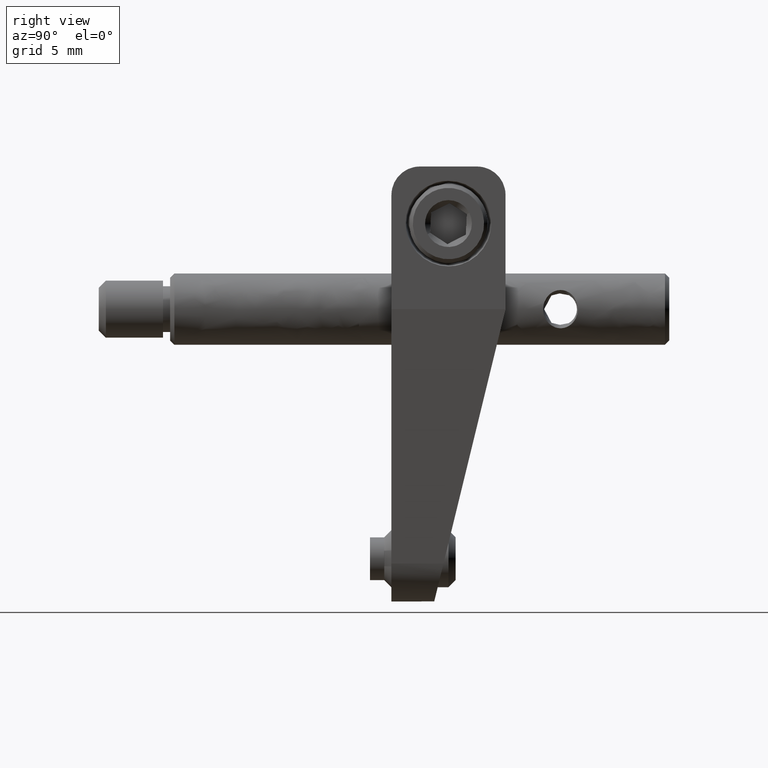
[diagram: clean part render]
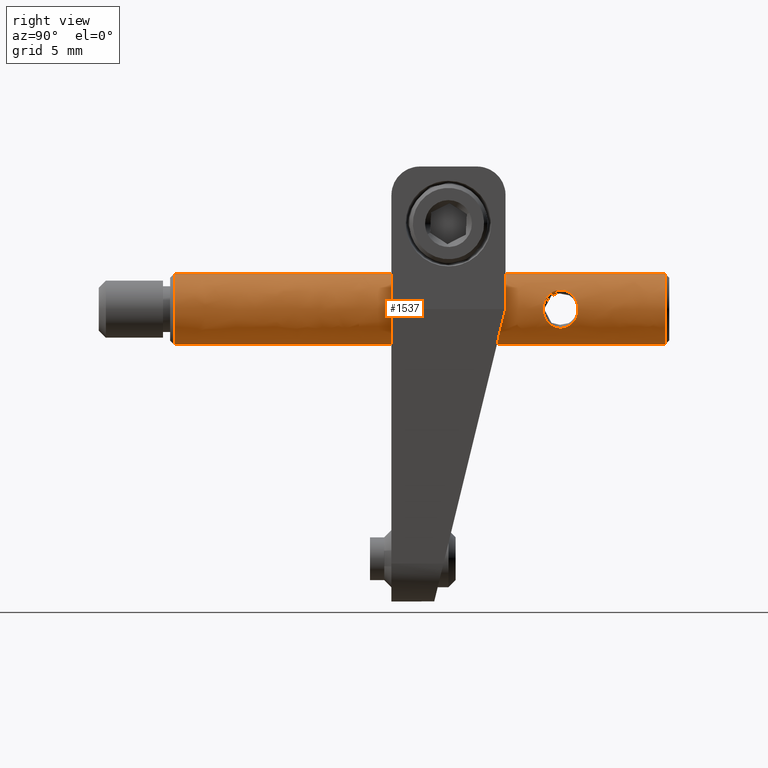
[diagram: same view with one face highlighted and labeled with its STEP entity id]
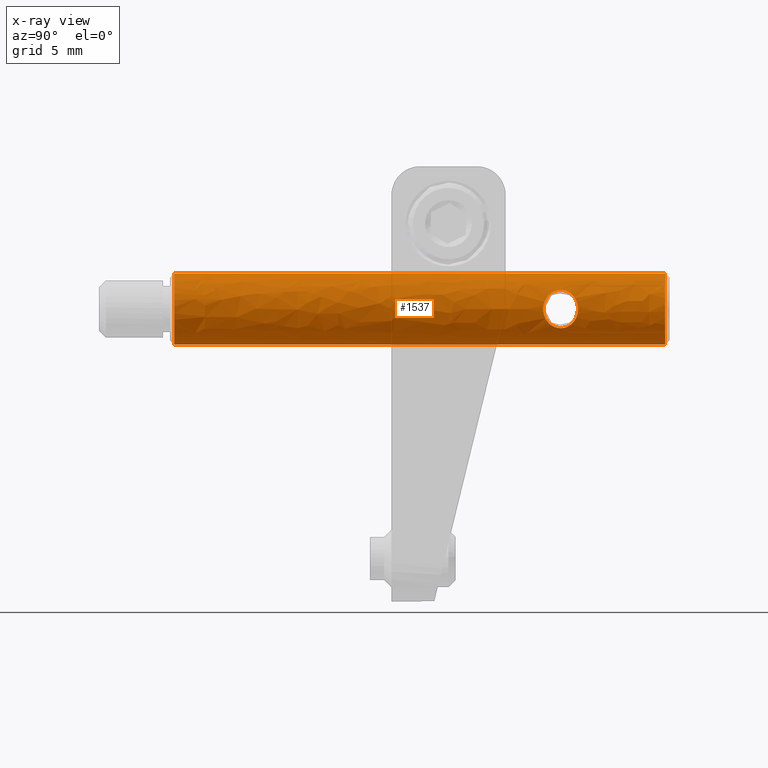
[diagram: x-ray of the same camera — body ghosted, the highlighted face saturated]
A machine part, right view. The second image highlights one B-rep face of the part: STEP entity #1537.
The next image is the same camera in x-ray: the body ghosted, the highlighted face saturated — about 0% of this face is hidden behind the body in this view.
In plain terms, the highlighted face is a freeform B-spline surface patch.
Its self-contained STEP definition (entity closure, byte-faithful):
#11 = CARTESIAN_POINT ( 'NONE',  ( 2.391624933149139931, 10.83516174176345537, -0.7281042661467502786 ) ) ;
#83 = B_SPLINE_CURVE_WITH_KNOTS ( 'NONE', 1,
 ( #933, #5384 ),
 .UNSPECIFIED., .F., .F.,
 ( 2, 2 ),
 ( 0.000000000000000000, 1.000000000000000000 ),
 .UNSPECIFIED. ) ;
#93 = CARTESIAN_POINT ( 'NONE',  ( 2.500000000000006661, 22.62025244641592181, -2.499999999999999556 ) ) ;
#129 =( BOUNDED_SURFACE ( )  B_SPLINE_SURFACE ( 2, 1, ( 
 ( #4506, #2311 ),
 ( #166, #2425 ),
 ( #3426, #2275 ),
 ( #4040, #6809 ),
 ( #4076, #2349 ),
 ( #3962, #93 ),
 ( #1884, #5623 ),
 ( #2850, #6656 ),
 ( #1741, #4542 ) ),
 .UNSPECIFIED., .T., .F., .F. ) 
 B_SPLINE_SURFACE_WITH_KNOTS ( ( 3, 2, 2, 2, 3 ),
 ( 2, 2 ),
 ( 0.000000000000000000, 1.570796326794895004, 3.141592653589795336, 4.712388980384689674, 6.283185307179590673 ),
 ( 0.000000000000000000, 41.28240000000000265 ),
 .UNSPECIFIED. ) 
 GEOMETRIC_REPRESENTATION_ITEM ( )  RATIONAL_B_SPLINE_SURFACE ( (
 ( 1.000000000000000000, 1.000000000000000000),
 ( 0.7071067811865480168, 0.7071067811865480168),
 ( 1.000000000000000000, 1.000000000000000000),
 ( 0.7071067811865480168, 0.7071067811865480168),
 ( 1.000000000000000000, 1.000000000000000000),
 ( 0.7071067811865480168, 0.7071067811865480168),
 ( 1.000000000000000000, 1.000000000000000000),
 ( 0.7071067811865480168, 0.7071067811865480168),
 ( 1.000000000000000000, 1.000000000000000000) ) ) 
 REPRESENTATION_ITEM ( '' )  SURFACE ( )  );
#155 = CARTESIAN_POINT ( 'NONE',  ( 2.445536770222970002, 10.73472315978202118, 0.5191468286350009453 ) ) ;
#166 = CARTESIAN_POINT ( 'NONE',  ( -2.500000000000006661, -18.66214755358394939, 2.499999999999999556 ) ) ;
#186 = EDGE_CURVE ( 'NONE', #3321, #1702, #799, .T. ) ;
#228 = CARTESIAN_POINT ( 'NONE',  ( 2.352998193423748052, 12.80663731534220062, 0.8452616640604698750 ) ) ;
#273 = CARTESIAN_POINT ( 'NONE',  ( 2.200816926791451245, 11.28976237431681540, -1.186056154855789302 ) ) ;
#275 = ORIENTED_EDGE ( 'NONE', *, *, #5757, .T. ) ;
#343 = CARTESIAN_POINT ( 'NONE',  ( 2.463295149873934164, 13.01564651988514321, -0.4311893522641627730 ) ) ;
#345 = B_SPLINE_CURVE_WITH_KNOTS ( 'NONE', 3,
 ( #155, #6609, #3881, #5540, #2263, #733, #3339, #5037, #2376, #1161, #4574, #2768, #3990, #6149, #3414, #4532, #1266, #622, #2912, #2803, #6720, #3376, #5610, #5575, #3449, #4458, #1835, #4028, #1305, #3487, #4966, #657, #6684, #1765, #3525, #6795, #2951, #1339, #5151, #2412, #4064, #6261, #228, #4607, #768, #1869, #1092, #3209, #4935, #5376, #5915, #5475, #1562, #6017 ),
 .UNSPECIFIED., .F., .F.,
 ( 4, 2, 2, 1, 1, 2, 2, 2, 1, 2, 2, 2, 2, 2, 2, 2, 2, 2, 2, 1, 1, 2, 2, 2, 2, 1, 1, 1, 2, 2, 4 ),
 ( 0.000000000000000000, 0.06250000000000029143, 0.09375000000000047184, 0.1093750000000008743, 0.1171875000000010686, 0.1210937500000011657, 0.1250000000000012490, 0.1874999999999995282, 0.2187499999999980849, 0.2343749999999972800, 0.2499999999999965028, 0.3749999999999917288, 0.4374999999999893974, 0.4687499999999881761, 0.4999999999999870104, 0.5624999999999865663, 0.5937499999999853451, 0.6249999999999841238, 0.6874999999999802380, 0.7187499999999782396, 0.7343749999999773515, 0.7421874999999769074, 0.7499999999999764633, 0.8124999999999747979, 0.8437499999999739098, 0.8593749999999735767, 0.8671874999999730216, 0.8710937499999729106, 0.8730468749999731326, 0.8749999999999733546, 1.000000000000000000 ),
 .UNSPECIFIED. ) ;
#378 = CARTESIAN_POINT ( 'NONE',  ( 2.408653604153800476, 12.91554030187091051, -0.6698920163122994431 ) ) ;
#410 = CARTESIAN_POINT ( 'NONE',  ( 2.271384533415848228, 12.62385096143701269, -1.044600218301958705 ) ) ;
#480 = CARTESIAN_POINT ( 'NONE',  ( 2.500016177477889734, 10.63956583328443983, 2.522055571357705165E-15 ) ) ;
#513 = CARTESIAN_POINT ( 'NONE',  ( 2.231805419617236108, 11.19800230998965063, -1.126616459976129914 ) ) ;
#622 = CARTESIAN_POINT ( 'NONE',  ( 2.196420340278834704, 11.30455557890290130, 1.194069948356373478 ) ) ;
#657 = CARTESIAN_POINT ( 'NONE',  ( 2.159684986385244088, 12.27771734215366628, 1.259349392705091830 ) ) ;
#721 = VERTEX_POINT ( 'NONE', #2569 ) ;
#733 = CARTESIAN_POINT ( 'NONE',  ( 2.341035923945457675, 10.93681658014655866, 0.8774316190214132005 ) ) ;
#755 = CARTESIAN_POINT ( 'NONE',  ( 2.500000000000007105, 19.17905244641593399, 2.500000000000031530 ) ) ;
#768 = CARTESIAN_POINT ( 'NONE',  ( 2.380424123350161292, 12.86144666113091084, 0.7641210936691334998 ) ) ;
#769 = CARTESIAN_POINT ( 'NONE',  ( -4.096797320112179176E-14, -15.22094755358395091, 2.500000000000000000 ) ) ;
#777 = B_SPLINE_CURVE_WITH_KNOTS ( 'NONE', 1,
 ( #5440, #2606 ),
 .UNSPECIFIED., .F., .F.,
 ( 2, 2 ),
 ( 0.000000000000000000, 1.000000000000000000 ),
 .UNSPECIFIED. ) ;
#799 = B_SPLINE_CURVE_WITH_KNOTS ( 'NONE', 3,
 ( #3632, #3831, #4754, #2791 ),
 .UNSPECIFIED., .F., .F.,
 ( 4, 4 ),
 ( 0.000000000000000000, 1.000000000000000000 ),
 .UNSPECIFIED. ) ;
#812 = CARTESIAN_POINT ( 'NONE',  ( 2.134796262119211363, 11.56062475502611164, -1.301243355640217869 ) ) ;
#849 = CARTESIAN_POINT ( 'NONE',  ( 2.255940760583805993, 12.58474672442251396, -1.077396458043085925 ) ) ;
#888 = VERTEX_POINT ( 'NONE', #2822 ) ;
#933 = CARTESIAN_POINT ( 'NONE',  ( 4.043952363462444283E-14, 19.17905244641589846, -2.500000000000000000 ) ) ;
#986 = CARTESIAN_POINT ( 'NONE',  ( 2.244487494060073196, 11.16360072417095139, -1.101049081857780942 ) ) ;
#1076 = B_SPLINE_CURVE_WITH_KNOTS ( 'NONE', 3,
 ( #1917, #2993, #6338, #343, #2597, #1986, #1418, #378, #4213, #2563, #3133, #5231, #1384, #4180, #4759, #6839, #2491, #410, #6805, #849, #4687, #3027, #6374, #1454, #1880, #6871, #4073, #4146, #6269, #1951, #3533, #3605, #812, #5802, #5196, #273, #3203, #6507, #513, #5504, #986, #4891, #6975, #2056, #5943, #3809, #2155, #5402, #6473, #6576, #11, #6009, #4794, #4380, #6540, #480 ),
 .UNSPECIFIED., .F., .F.,
 ( 4, 2, 2, 1, 1, 1, 2, 2, 2, 2, 1, 2, 2, 2, 2, 2, 2, 2, 2, 2, 2, 1, 2, 2, 2, 2, 1, 1, 1, 2, 2, 4 ),
 ( 0.000000000000000000, 0.06250000000000771605, 0.09375000000001156020, 0.1093750000000136419, 0.1171875000000144884, 0.1210937500000148770, 0.1230468750000152933, 0.1250000000000157097, 0.1875000000000207889, 0.2187500000000236478, 0.2343750000000251188, 0.2421875000000257572, 0.2500000000000263678, 0.3125000000000234257, 0.3437500000000219269, 0.3750000000000204836, 0.5000000000000134337, 0.5625000000000098810, 0.6250000000000064393, 0.6875000000000028866, 0.7187500000000018874, 0.7343750000000019984, 0.7421875000000019984, 0.7500000000000021094, 0.8125000000000000000, 0.8437499999999988898, 0.8593749999999987788, 0.8671874999999988898, 0.8710937499999991118, 0.8730468749999991118, 0.8749999999999991118, 1.000000000000000000 ),
 .UNSPECIFIED. ) ;
#1092 = CARTESIAN_POINT ( 'NONE',  ( 2.397392508011704226, 12.89425757131243699, 0.7089792997839412525 ) ) ;
#1161 = CARTESIAN_POINT ( 'NONE',  ( 2.311758480721265219, 11.00027110846046341, 0.9517308936371701167 ) ) ;
#1242 = FACE_OUTER_BOUND ( 'NONE', #5905, .T. ) ;
#1258 = CARTESIAN_POINT ( 'NONE',  ( 2.500000000000007105, -15.22094755358395979, -2.499999999999824585 ) ) ;
#1266 = CARTESIAN_POINT ( 'NONE',  ( 2.201124559164245209, 11.28925240467004443, 1.185385796640978651 ) ) ;
#1292 = CARTESIAN_POINT ( 'NONE',  ( -4.062997185072889789E-14, 19.17905244641589846, 2.500000000000000000 ) ) ;
#1305 = CARTESIAN_POINT ( 'NONE',  ( 2.137579562375369058, 12.16949441888805339, 1.296466782482080360 ) ) ;
#1339 = CARTESIAN_POINT ( 'NONE',  ( 2.261108685901595194, 12.59786467591102621, 1.066499270385424802 ) ) ;
#1384 = CARTESIAN_POINT ( 'NONE',  ( 2.372614706761568826, 12.84633654319528517, -0.7915360845840527793 ) ) ;
#1418 = CARTESIAN_POINT ( 'NONE',  ( 2.422030256594260411, 12.94074504626840039, -0.6206967534607311654 ) ) ;
#1454 = CARTESIAN_POINT ( 'NONE',  ( 2.184016106818915226, 12.37223707518507965, -1.216715830138542120 ) ) ;
#1470 = CARTESIAN_POINT ( 'NONE',  ( 4.043952363462444283E-14, 19.17905244641589846, -2.500000000000000000 ) ) ;
#1537 = ADVANCED_FACE ( 'NONE', ( #6236, #1242 ), #129, .T. ) ;
#1562 = CARTESIAN_POINT ( 'NONE',  ( 2.499690099472945182, 13.07800743487809569, 0.2395817642076635556 ) ) ;
#1652 =( BOUNDED_CURVE ( )  B_SPLINE_CURVE ( 2, ( #1470, #3655, #2400, #755, #3185 ),
 .UNSPECIFIED., .F., .F. ) 
 B_SPLINE_CURVE_WITH_KNOTS ( ( 3, 2, 3 ),
 ( 0.000000000000000000, 0.4999999999999990008, 1.000000000000000000 ),
 .UNSPECIFIED. ) 
 CURVE ( )  GEOMETRIC_REPRESENTATION_ITEM ( )  RATIONAL_B_SPLINE_CURVE ( ( 0.9999999999999849010, 0.7071067811865631159, 1.000000000000000000, 0.7071067811865457964, 1.000000000000001998 ) ) 
 REPRESENTATION_ITEM ( '' )  );
#1702 = VERTEX_POINT ( 'NONE', #2635 ) ;
#1741 = CARTESIAN_POINT ( 'NONE',  ( -2.500000000000000000, -18.66214755358394939, -2.219207724420214489E-15 ) ) ;
#1756 = CARTESIAN_POINT ( 'NONE',  ( 2.500000000000000000, -15.22094755358396334, -1.467249467130704456E-15 ) ) ;
#1765 = CARTESIAN_POINT ( 'NONE',  ( 2.196982300577722036, 12.41761117017503402, 1.193609689058801715 ) ) ;
#1835 = CARTESIAN_POINT ( 'NONE',  ( 2.117818469218501587, 12.02914979668832274, 1.328493749913183031 ) ) ;
#1861 = CARTESIAN_POINT ( 'NONE',  ( 4.065275233887609619E-14, -15.22094755358395091, -2.500000000000000000 ) ) ;
#1869 = CARTESIAN_POINT ( 'NONE',  ( 2.388392891655604977, 12.87699259827530263, 0.7390100271050231706 ) ) ;
#1880 = CARTESIAN_POINT ( 'NONE',  ( 2.175877783559358125, 12.34280062189281324, -1.231172631984596366 ) ) ;
#1884 = CARTESIAN_POINT ( 'NONE',  ( 2.953913099832359805E-16, -18.66214755358394939, -2.500000000000000000 ) ) ;
#1917 = CARTESIAN_POINT ( 'NONE',  ( 2.500013945963820206, 13.07853542802942037, 0.003255907548972504766 ) ) ;
#1951 = CARTESIAN_POINT ( 'NONE',  ( 2.110073599840176062, 11.80325877084214170, -1.340742160537133687 ) ) ;
#1986 = CARTESIAN_POINT ( 'NONE',  ( 2.432522681594909919, 12.96010317508309662, -0.5776835357860067299 ) ) ;
#2056 = CARTESIAN_POINT ( 'NONE',  ( 2.299340231960719017, 11.02663856782154461, -0.9836030511118124542 ) ) ;
#2063 = ORIENTED_EDGE ( 'NONE', *, *, #6763, .F. ) ;
#2095 =( BOUNDED_CURVE ( )  B_SPLINE_CURVE ( 2, ( #4093, #6786, #1756, #1258, #1861 ),
 .UNSPECIFIED., .F., .T. ) 
 B_SPLINE_CURVE_WITH_KNOTS ( ( 3, 2, 3 ),
 ( 0.000000000000000000, 0.5000000000000008882, 1.000000000000000000 ),
 .UNSPECIFIED. ) 
 CURVE ( )  GEOMETRIC_REPRESENTATION_ITEM ( )  RATIONAL_B_SPLINE_CURVE ( ( 1.000000000000001998, 0.7071067811865457964, 1.000000000000000000, 0.7071067811865631159, 0.9999999999999849010 ) ) 
 REPRESENTATION_ITEM ( '' )  );
#2155 = CARTESIAN_POINT ( 'NONE',  ( 2.366025466850732339, 10.88546089944673589, -0.8076160776283148879 ) ) ;
#2263 = CARTESIAN_POINT ( 'NONE',  ( 2.359942280711111451, 10.89744792331080525, 0.8258415130996941134 ) ) ;
#2275 = CARTESIAN_POINT ( 'NONE',  ( -2.420641493714754930E-16, 22.62025244641589694, 2.500000000000000000 ) ) ;
#2311 = CARTESIAN_POINT ( 'NONE',  ( -2.500000000000000000, 22.62025244641589694, 3.128796403630535235E-15 ) ) ;
#2349 = CARTESIAN_POINT ( 'NONE',  ( 2.500000000000000000, 22.62025244641589694, 3.434958103417375078E-15 ) ) ;
#2376 = CARTESIAN_POINT ( 'NONE',  ( 2.315060363090692963, 10.99294417990489059, 0.9436707489037094998 ) ) ;
#2400 = CARTESIAN_POINT ( 'NONE',  ( 2.500000000000000000, 19.17905244641590912, 2.989161545914704296E-15 ) ) ;
#2412 = CARTESIAN_POINT ( 'NONE',  ( 2.267945637999029262, 12.61500440786068999, 1.051890392853507938 ) ) ;
#2425 = CARTESIAN_POINT ( 'NONE',  ( -2.500000000000006661, 22.62025244641592181, 2.500000000000006661 ) ) ;
#2491 = CARTESIAN_POINT ( 'NONE',  ( 2.280706659022123883, 12.64643251310257099, -1.024018521113873259 ) ) ;
#2563 = CARTESIAN_POINT ( 'NONE',  ( 2.398653085855488865, 12.89646073448077424, -0.7046107678241223526 ) ) ;
#2569 = CARTESIAN_POINT ( 'NONE',  ( 4.065275233887609619E-14, -15.22094755358395091, -2.500000000000000000 ) ) ;
#2597 = CARTESIAN_POINT ( 'NONE',  ( 2.452107721276513441, 12.99582484896350820, -0.4906191794291567265 ) ) ;
#2606 = CARTESIAN_POINT ( 'NONE',  ( -4.062997185072889789E-14, 19.17905244641589846, 2.500000000000000000 ) ) ;
#2633 = ORIENTED_EDGE ( 'NONE', *, *, #186, .T. ) ;
#2635 = CARTESIAN_POINT ( 'NONE',  ( 2.445536770222970002, 10.73472315978202118, 0.5191468286350009453 ) ) ;
#2711 = EDGE_CURVE ( 'NONE', #4684, #721, #2095, .T. ) ;
#2768 = CARTESIAN_POINT ( 'NONE',  ( 2.287801706854313721, 11.05393284404034659, 1.009383283098156836 ) ) ;
#2791 = CARTESIAN_POINT ( 'NONE',  ( 2.445536770222970002, 10.73472315978202118, 0.5191468286350009453 ) ) ;
#2803 = CARTESIAN_POINT ( 'NONE',  ( 2.137420363435519111, 11.53105641623212563, 1.296958593232638401 ) ) ;
#2822 = CARTESIAN_POINT ( 'NONE',  ( 4.043952363462444283E-14, 19.17905244641589846, -2.500000000000000000 ) ) ;
#2850 = CARTESIAN_POINT ( 'NONE',  ( -2.500000000000006661, -18.66214755358394939, -2.500000000000006661 ) ) ;
#2912 = CARTESIAN_POINT ( 'NONE',  ( 2.161463251263790575, 11.42206878445431073, 1.257878845506112730 ) ) ;
#2951 = CARTESIAN_POINT ( 'NONE',  ( 2.253810265439559313, 12.57933740647060716, 1.081924953797084754 ) ) ;
#2993 = CARTESIAN_POINT ( 'NONE',  ( 2.500163831788673185, 13.07881986950567921, -0.1241685506149536322 ) ) ;
#3027 = CARTESIAN_POINT ( 'NONE',  ( 2.229270229249136648, 12.51489566718142576, -1.132506145625787219 ) ) ;
#3060 = ORIENTED_EDGE ( 'NONE', *, *, #5926, .T. ) ;
#3133 = CARTESIAN_POINT ( 'NONE',  ( 2.396613830352830821, 12.89254812090251967, -0.7115160634724209121 ) ) ;
#3185 = CARTESIAN_POINT ( 'NONE',  ( -4.062997185072889789E-14, 19.17905244641589846, 2.500000000000000000 ) ) ;
#3203 = CARTESIAN_POINT ( 'NONE',  ( 2.210004892427667844, 11.26115532774332983, -1.168894889641098445 ) ) ;
#3209 = CARTESIAN_POINT ( 'NONE',  ( 2.401812289302432735, 12.90267206942317380, 0.6937822214493524209 ) ) ;
#3321 = VERTEX_POINT ( 'NONE', #3343 ) ;
#3339 = CARTESIAN_POINT ( 'NONE',  ( 2.331428569726419209, 10.95715703920696171, 0.9027699483212673348 ) ) ;
#3343 = CARTESIAN_POINT ( 'NONE',  ( 2.500016177477889734, 10.63956583328443983, 2.522055571357705165E-15 ) ) ;
#3376 = CARTESIAN_POINT ( 'NONE',  ( 2.112682264551401623, 11.75156323491523302, 1.336631244713161415 ) ) ;
#3414 = CARTESIAN_POINT ( 'NONE',  ( 2.223585888329141724, 11.22012465128423031, 1.142958685181129752 ) ) ;
#3426 = CARTESIAN_POINT ( 'NONE',  ( -3.169320895904425213E-16, -18.66214755358394939, 2.500000000000000000 ) ) ;
#3449 = CARTESIAN_POINT ( 'NONE',  ( 2.111046977868491936, 11.91658405375483376, 1.339209289222749844 ) ) ;
#3487 = CARTESIAN_POINT ( 'NONE',  ( 2.142627767948932949, 12.19714297132397007, 1.288125302148270590 ) ) ;
#3525 = CARTESIAN_POINT ( 'NONE',  ( 2.223351809195726947, 12.49667194745861742, 1.143269680461618920 ) ) ;
#3533 = CARTESIAN_POINT ( 'NONE',  ( 2.113149260605595270, 11.74219518166760956, -1.335941057516735420 ) ) ;
#3605 = CARTESIAN_POINT ( 'NONE',  ( 2.125624409992334485, 11.62031071913036939, -1.316001206079099095 ) ) ;
#3632 = CARTESIAN_POINT ( 'NONE',  ( 2.500016177477889734, 10.63956583328443983, 2.522055571357705165E-15 ) ) ;
#3655 = CARTESIAN_POINT ( 'NONE',  ( 2.500000000000007105, 19.17905244641593043, -2.499999999999818368 ) ) ;
#3809 = CARTESIAN_POINT ( 'NONE',  ( 2.348319727957941083, 10.92131993104582932, -0.8582979726198857184 ) ) ;
#3831 = CARTESIAN_POINT ( 'NONE',  ( 2.500000000000000444, 10.63956499851477311, 0.1777292142315408940 ) ) ;
#3881 = CARTESIAN_POINT ( 'NONE',  ( 2.407018457134761480, 10.80471261040927722, 0.6798649732248246425 ) ) ;
#3962 = CARTESIAN_POINT ( 'NONE',  ( 2.500000000000006661, -18.66214755358394939, -2.500000000000006661 ) ) ;
#3990 = CARTESIAN_POINT ( 'NONE',  ( 2.267270129740186491, 11.10288695175364992, 1.054269942639090019 ) ) ;
#4028 = CARTESIAN_POINT ( 'NONE',  ( 2.124258179615231334, 12.08584814157357812, 1.318262948199245610 ) ) ;
#4040 = CARTESIAN_POINT ( 'NONE',  ( 2.500000000000006661, -18.66214755358394939, 2.499999999999999556 ) ) ;
#4064 = CARTESIAN_POINT ( 'NONE',  ( 2.294773702669840709, 12.68107432879197027, 0.9936125227166027196 ) ) ;
#4073 = CARTESIAN_POINT ( 'NONE',  ( 2.153456296530406711, 12.25074440995186187, -1.269945411145235070 ) ) ;
#4076 = CARTESIAN_POINT ( 'NONE',  ( 2.500000000000000000, -18.66214755358394939, -1.913046024633375041E-15 ) ) ;
#4093 = CARTESIAN_POINT ( 'NONE',  ( -4.096797320112179176E-14, -15.22094755358395091, 2.500000000000000000 ) ) ;
#4146 = CARTESIAN_POINT ( 'NONE',  ( 2.123672635554211929, 12.10470433644727173, -1.319916827183721164 ) ) ;
#4180 = CARTESIAN_POINT ( 'NONE',  ( 2.348654470338709110, 12.79855658563730891, -0.8592257273495995662 ) ) ;
#4213 = CARTESIAN_POINT ( 'NONE',  ( 2.401693169361515334, 12.90228286447707440, -0.6942341161862628507 ) ) ;
#4380 = CARTESIAN_POINT ( 'NONE',  ( 2.460234530896122873, 10.70299454889006086, -0.4996816165073829641 ) ) ;
#4458 = CARTESIAN_POINT ( 'NONE',  ( 2.112116422526429727, 11.94270103934704608, 1.337526409355911827 ) ) ;
#4506 = CARTESIAN_POINT ( 'NONE',  ( -2.500000000000000000, -18.66214755358394939, -2.219207724420214489E-15 ) ) ;
#4532 = CARTESIAN_POINT ( 'NONE',  ( 2.209998741095640540, 11.26139870453927472, 1.168757620805035646 ) ) ;
#4542 = CARTESIAN_POINT ( 'NONE',  ( -2.500000000000000000, 22.62025244641589694, 3.128796403630535235E-15 ) ) ;
#4574 = CARTESIAN_POINT ( 'NONE',  ( 2.309733948449223195, 11.00478925392797080, 0.9566296991907002889 ) ) ;
#4607 = CARTESIAN_POINT ( 'NONE',  ( 2.364198704182154387, 12.82935826840632565, 0.8134892122292505245 ) ) ;
#4684 = VERTEX_POINT ( 'NONE', #769 ) ;
#4687 = CARTESIAN_POINT ( 'NONE',  ( 2.252362880051981708, 12.57547309400776925, -1.084848413553923141 ) ) ;
#4720 = VERTEX_POINT ( 'NONE', #5901 ) ;
#4754 = CARTESIAN_POINT ( 'NONE',  ( 2.480750259400094304, 10.67128409593357752, 0.3531097068266588201 ) ) ;
#4759 = CARTESIAN_POINT ( 'NONE',  ( 2.311796567440126182, 12.71859497360022040, -0.9522123180611642423 ) ) ;
#4794 = CARTESIAN_POINT ( 'NONE',  ( 2.393348885703989293, 10.83183278165877184, -0.7224222539315066083 ) ) ;
#4891 = CARTESIAN_POINT ( 'NONE',  ( 2.246582907870466439, 11.15801528292325528, -1.096774648803440888 ) ) ;
#4935 = CARTESIAN_POINT ( 'NONE',  ( 2.403688721576564102, 12.90623157109752128, 0.6872304611608786029 ) ) ;
#4966 = CARTESIAN_POINT ( 'NONE',  ( 2.153859117898298425, 12.25197299619135549, 1.269256257131225585 ) ) ;
#5037 = CARTESIAN_POINT ( 'NONE',  ( 2.320000114063690777, 10.98203580340183905, 0.9315223812654421787 ) ) ;
#5151 = CARTESIAN_POINT ( 'NONE',  ( 2.265999492874592125, 12.61015270554411138, 1.056067934123735785 ) ) ;
#5196 = CARTESIAN_POINT ( 'NONE',  ( 2.174843079779725574, 11.37696961350775560, -1.233432190769508940 ) ) ;
#5231 = CARTESIAN_POINT ( 'NONE',  ( 2.395241507105654311, 12.88990909738311608, -0.7161171802990304869 ) ) ;
#5376 = CARTESIAN_POINT ( 'NONE',  ( 2.404935661878975228, 12.90859419181337842, 0.6828540394582903739 ) ) ;
#5384 = CARTESIAN_POINT ( 'NONE',  ( 4.065275233887609619E-14, -15.22094755358395091, -2.500000000000000000 ) ) ;
#5402 = CARTESIAN_POINT ( 'NONE',  ( 2.374755954873247976, 10.86805073467459692, -0.7817515166614725786 ) ) ;
#5408 = ORIENTED_EDGE ( 'NONE', *, *, #2711, .T. ) ;
#5440 = CARTESIAN_POINT ( 'NONE',  ( -4.096797320112179176E-14, -15.22094755358395091, 2.500000000000000000 ) ) ;
#5475 = CARTESIAN_POINT ( 'NONE',  ( 2.465002090590274531, 13.02214270617788472, 0.4698398540955840974 ) ) ;
#5504 = CARTESIAN_POINT ( 'NONE',  ( 2.239388973207753430, 11.17732670601166944, -1.111382120752109515 ) ) ;
#5540 = CARTESIAN_POINT ( 'NONE',  ( 2.372135487256550768, 10.87295183380037500, 0.7902289470776708846 ) ) ;
#5575 = CARTESIAN_POINT ( 'NONE',  ( 2.110051055868956471, 11.86160935858021404, 1.340777910294800757 ) ) ;
#5610 = CARTESIAN_POINT ( 'NONE',  ( 2.110214052244541172, 11.83410819194779506, 1.340521917960710852 ) ) ;
#5623 = CARTESIAN_POINT ( 'NONE',  ( 3.702592502022009380E-16, 22.62025244641589694, -2.500000000000000000 ) ) ;
#5757 = EDGE_CURVE ( 'NONE', #4720, #3321, #1076, .T. ) ;
#5802 = CARTESIAN_POINT ( 'NONE',  ( 2.159663080564462323, 11.43695590559567954, -1.259541476015298533 ) ) ;
#5821 = EDGE_LOOP ( 'NONE', ( #2633, #3060, #275 ) ) ;
#5901 = CARTESIAN_POINT ( 'NONE',  ( 2.500013945963820206, 13.07853542802942037, 0.003255907548972504766 ) ) ;
#5905 = EDGE_LOOP ( 'NONE', ( #2063, #6572, #6855, #5408 ) ) ;
#5915 = CARTESIAN_POINT ( 'NONE',  ( 2.405257397257538621, 12.90920371904979724, 0.6817245219552755531 ) ) ;
#5926 = EDGE_CURVE ( 'NONE', #1702, #4720, #345, .T. ) ;
#5943 = CARTESIAN_POINT ( 'NONE',  ( 2.336190119676842425, 10.94661088818495998, -0.8906884083907905536 ) ) ;
#6009 = CARTESIAN_POINT ( 'NONE',  ( 2.393004331969141418, 10.83249808352232257, -0.7235578141507724714 ) ) ;
#6017 = CARTESIAN_POINT ( 'NONE',  ( 2.500013945963820206, 13.07853542802942037, 0.003255907548972504766 ) ) ;
#6021 = EDGE_CURVE ( 'NONE', #4684, #6370, #777, .T. ) ;
#6149 = CARTESIAN_POINT ( 'NONE',  ( 2.237910173337095188, 11.18037008885254480, 1.114566191109988003 ) ) ;
#6236 = FACE_BOUND ( 'NONE', #5821, .T. ) ;
#6261 = CARTESIAN_POINT ( 'NONE',  ( 2.318653445163031179, 12.73448838240662973, 0.9370791413623320576 ) ) ;
#6269 = CARTESIAN_POINT ( 'NONE',  ( 2.110670669213555506, 11.98681361208348761, -1.339802178404933652 ) ) ;
#6338 = CARTESIAN_POINT ( 'NONE',  ( 2.490522351226373221, 13.06313319765417447, -0.2495744971658373779 ) ) ;
#6370 = VERTEX_POINT ( 'NONE', #1292 ) ;
#6374 = CARTESIAN_POINT ( 'NONE',  ( 2.209946926585439897, 12.45903854357355378, -1.169371474892481055 ) ) ;
#6473 = CARTESIAN_POINT ( 'NONE',  ( 2.384669026396118330, 10.84864774007171384, -0.7506719612820949017 ) ) ;
#6507 = CARTESIAN_POINT ( 'NONE',  ( 2.224431401879882308, 11.21893780761832815, -1.141058350929759158 ) ) ;
#6540 = CARTESIAN_POINT ( 'NONE',  ( 2.500000000000001332, 10.63956628639832758, -0.2537235356077431336 ) ) ;
#6572 = ORIENTED_EDGE ( 'NONE', *, *, #6579, .T. ) ;
#6576 = CARTESIAN_POINT ( 'NONE',  ( 2.389550043947159974, 10.83917345884475303, -0.7349080441083877258 ) ) ;
#6579 = EDGE_CURVE ( 'NONE', #888, #6370, #1652, .T. ) ;
#6609 = CARTESIAN_POINT ( 'NONE',  ( 2.428007199248744197, 10.76621852166881332, 0.6015656076617824644 ) ) ;
#6656 = CARTESIAN_POINT ( 'NONE',  ( -2.499999999999999556, 22.62025244641592181, -2.499999999999999556 ) ) ;
#6684 = CARTESIAN_POINT ( 'NONE',  ( 2.180855830685477947, 12.36287251884879268, 1.222566308656984679 ) ) ;
#6720 = CARTESIAN_POINT ( 'NONE',  ( 2.116976698828555215, 11.69647798737977595, 1.329878380628907841 ) ) ;
#6763 = EDGE_CURVE ( 'NONE', #888, #721, #83, .T. ) ;
#6786 = CARTESIAN_POINT ( 'NONE',  ( 2.500000000000007105, -15.22094755358395979, 2.500000000000026201 ) ) ;
#6795 = CARTESIAN_POINT ( 'NONE',  ( 2.237077402363833123, 12.53544053617396514, 1.116373448619919717 ) ) ;
#6805 = CARTESIAN_POINT ( 'NONE',  ( 2.262109271037428648, 12.60049206517456533, -1.064384089017560875 ) ) ;
#6809 = CARTESIAN_POINT ( 'NONE',  ( 2.500000000000006661, 22.62025244641592181, 2.500000000000006661 ) ) ;
#6839 = CARTESIAN_POINT ( 'NONE',  ( 2.299356060407766744, 12.69055915697117598, -0.9817886187130351328 ) ) ;
#6855 = ORIENTED_EDGE ( 'NONE', *, *, #6021, .F. ) ;
#6871 = CARTESIAN_POINT ( 'NONE',  ( 2.160774941934219040, 12.28292245431604357, -1.257490289840934139 ) ) ;
#6975 = CARTESIAN_POINT ( 'NONE',  ( 2.274172012368648854, 11.08553009853821258, -1.039857085637838185 ) ) ;